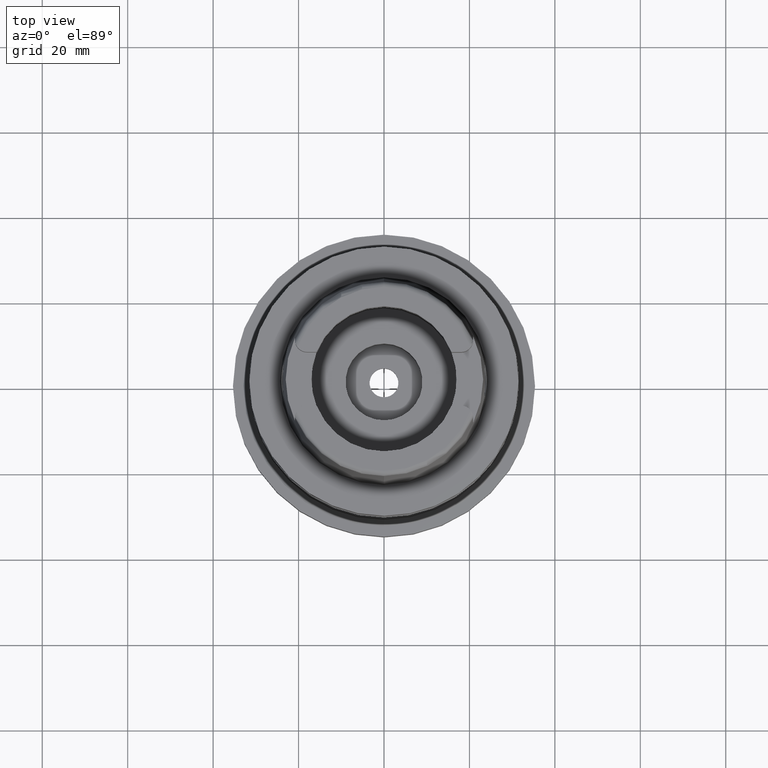
[diagram: clean part render]
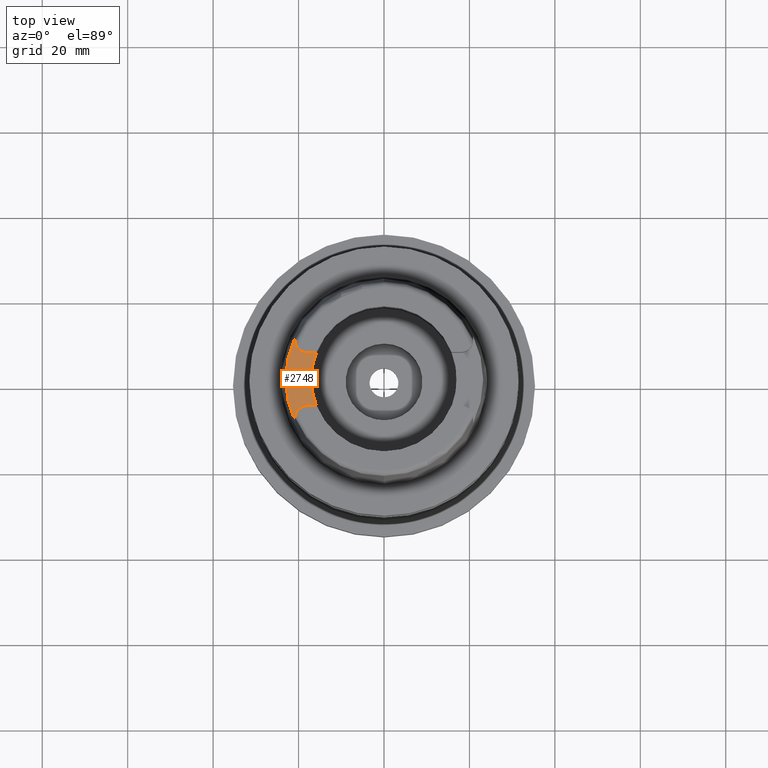
[diagram: same view with one face highlighted and labeled with its STEP entity id]
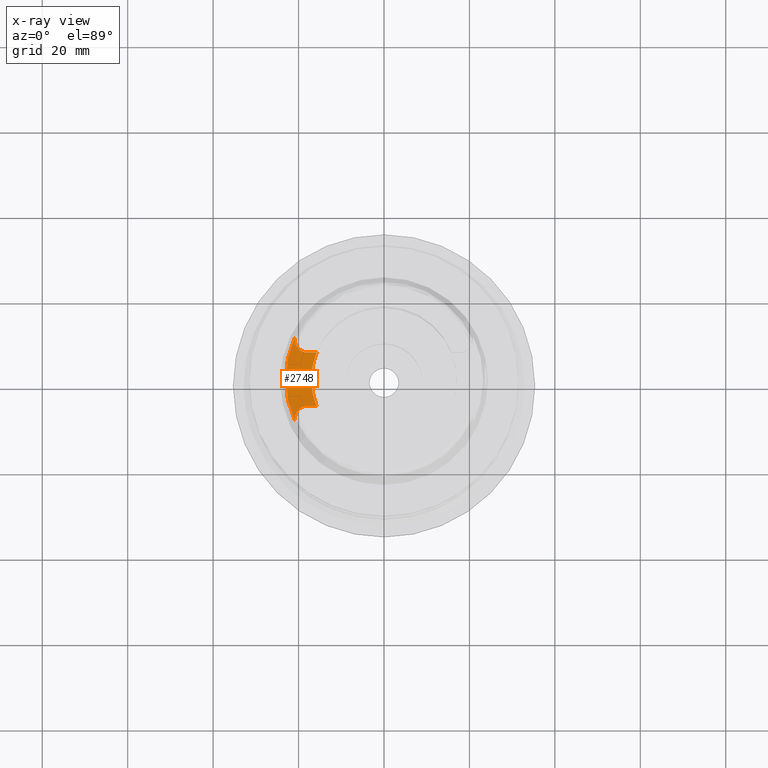
[diagram: x-ray of the same camera — body ghosted, the highlighted face saturated]
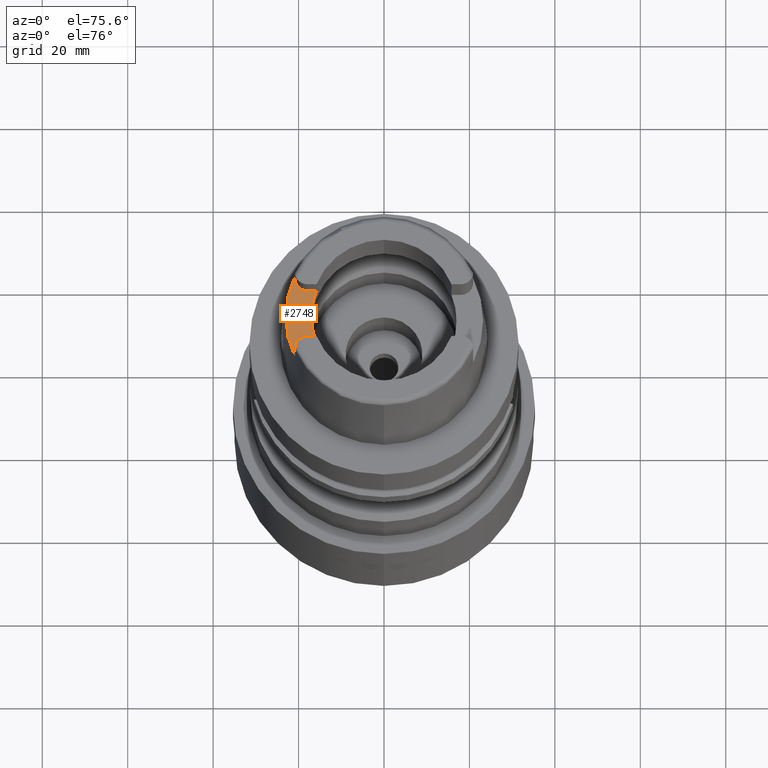
[diagram: same view with one face highlighted and labeled with its STEP entity id]
A machine part, top view. The second image highlights one B-rep face of the part: STEP entity #2748.
The next image is the same camera in x-ray: the body ghosted, the highlighted face saturated — about 0% of this face is hidden behind the body in this view.
A second angle (auxiliary view) of the same face is appended — the face is thin or edge-on in the first view.
In plain terms, the highlighted planar face has unit normal (0, 0, 1).
Its self-contained STEP definition (entity closure, byte-faithful):
#39=CARTESIAN_POINT('',(0.E0,0.E0,2.6E1));
#40=DIRECTION('',(0.E0,0.E0,1.E0));
#41=DIRECTION('',(-9.294994374136E-1,3.688235294118E-1,0.E0));
#42=AXIS2_PLACEMENT_3D('',#39,#40,#41);
#47=DIRECTION('',(-1.E0,8.644330667353E-14,0.E0));
#48=VECTOR('',#47,2.188509563969E0);
#49=CARTESIAN_POINT('',(-1.580149043603E1,-6.27E0,2.6E1));
#50=LINE('',#49,#48);
#54=CARTESIAN_POINT('',(-1.799E1,-9.15E0,2.6E1));
#55=DIRECTION('',(0.E0,0.E0,1.E0));
#56=DIRECTION('',(0.E0,1.E0,0.E0));
#57=AXIS2_PLACEMENT_3D('',#54,#55,#56);
#62=DIRECTION('',(1.239819362355E-6,-9.999999999992E-1,-7.076906260107E-14));
#63=VECTOR('',#62,5.522165905616E-1);
#64=CARTESIAN_POINT('',(-2.087E1,-9.15E0,2.6E1));
#65=LINE('',#64,#63);
#69=CARTESIAN_POINT('',(0.E0,0.E0,2.6E1));
#70=DIRECTION('',(0.E0,0.E0,-1.E0));
#71=DIRECTION('',(-9.068002397791E-1,-4.215605829967E-1,0.E0));
#72=AXIS2_PLACEMENT_3D('',#69,#70,#71);
#77=DIRECTION('',(5.336846542901E-6,-9.999999999858E-1,7.077128431347E-14));
#78=VECTOR('',#77,5.521992549083E-1);
#79=CARTESIAN_POINT('',(-2.087000294700E1,9.702199254900E0,2.6E1));
#80=LINE('',#79,#78);
#84=CARTESIAN_POINT('',(-1.799E1,9.15E0,2.6E1));
#85=DIRECTION('',(0.E0,0.E0,1.E0));
#86=DIRECTION('',(-1.E0,0.E0,0.E0));
#87=AXIS2_PLACEMENT_3D('',#84,#85,#86);
#92=DIRECTION('',(1.E0,8.644330667353E-14,0.E0));
#93=VECTOR('',#92,2.188509563969E0);
#94=CARTESIAN_POINT('',(-1.799E1,6.27E0,2.6E1));
#95=LINE('',#94,#93);
#2355=CARTESIAN_POINT('',(-1.580149043603E1,6.27E0,2.6E1));
#2356=CARTESIAN_POINT('',(-1.580149043603E1,-6.27E0,2.6E1));
#2357=VERTEX_POINT('',#2355);
#2358=VERTEX_POINT('',#2356);
#2371=CARTESIAN_POINT('',(-1.799E1,-6.27E0,2.6E1));
#2372=VERTEX_POINT('',#2371);
#2373=CARTESIAN_POINT('',(-2.087E1,-9.15E0,2.6E1));
#2374=VERTEX_POINT('',#2373);
#2375=CARTESIAN_POINT('',(-2.086999931535E1,-9.702216590561E0,2.6E1));
#2376=VERTEX_POINT('',#2375);
#2377=CARTESIAN_POINT('',(-2.087E1,9.702213322399E0,2.6E1));
#2378=VERTEX_POINT('',#2377);
#2379=CARTESIAN_POINT('',(-2.087E1,9.15E0,2.6E1));
#2380=VERTEX_POINT('',#2379);
#2381=CARTESIAN_POINT('',(-1.799E1,6.27E0,2.6E1));
#2382=VERTEX_POINT('',#2381);
#2726=CARTESIAN_POINT('',(0.E0,0.E0,2.6E1));
#2727=DIRECTION('',(0.E0,0.E0,1.E0));
#2728=DIRECTION('',(0.E0,1.E0,0.E0));
#2729=AXIS2_PLACEMENT_3D('',#2726,#2727,#2728);
#2730=PLANE('',#2729);
#2731=ORIENTED_EDGE('',*,*,#2707,.T.);
#2733=ORIENTED_EDGE('',*,*,#2732,.T.);
#2735=ORIENTED_EDGE('',*,*,#2734,.T.);
#2737=ORIENTED_EDGE('',*,*,#2736,.T.);
#2739=ORIENTED_EDGE('',*,*,#2738,.T.);
#2741=ORIENTED_EDGE('',*,*,#2740,.T.);
#2743=ORIENTED_EDGE('',*,*,#2742,.T.);
#2745=ORIENTED_EDGE('',*,*,#2744,.T.);
#2746=EDGE_LOOP('',(#2731,#2733,#2735,#2737,#2739,#2741,#2743,#2745));
#2747=FACE_OUTER_BOUND('',#2746,.F.);
#43=CIRCLE('',#42,1.7E1);
#58=CIRCLE('',#57,2.88E0);
#73=CIRCLE('',#72,2.301499170874E1);
#88=CIRCLE('',#87,2.88E0);
#2707=EDGE_CURVE('',#2357,#2358,#43,.T.);
#2732=EDGE_CURVE('',#2358,#2372,#50,.T.);
#2734=EDGE_CURVE('',#2372,#2374,#58,.T.);
#2736=EDGE_CURVE('',#2374,#2376,#65,.T.);
#2738=EDGE_CURVE('',#2376,#2378,#73,.T.);
#2740=EDGE_CURVE('',#2378,#2380,#80,.T.);
#2742=EDGE_CURVE('',#2380,#2382,#88,.T.);
#2744=EDGE_CURVE('',#2382,#2357,#95,.T.);
#2748=ADVANCED_FACE('',(#2747),#2730,.T.);